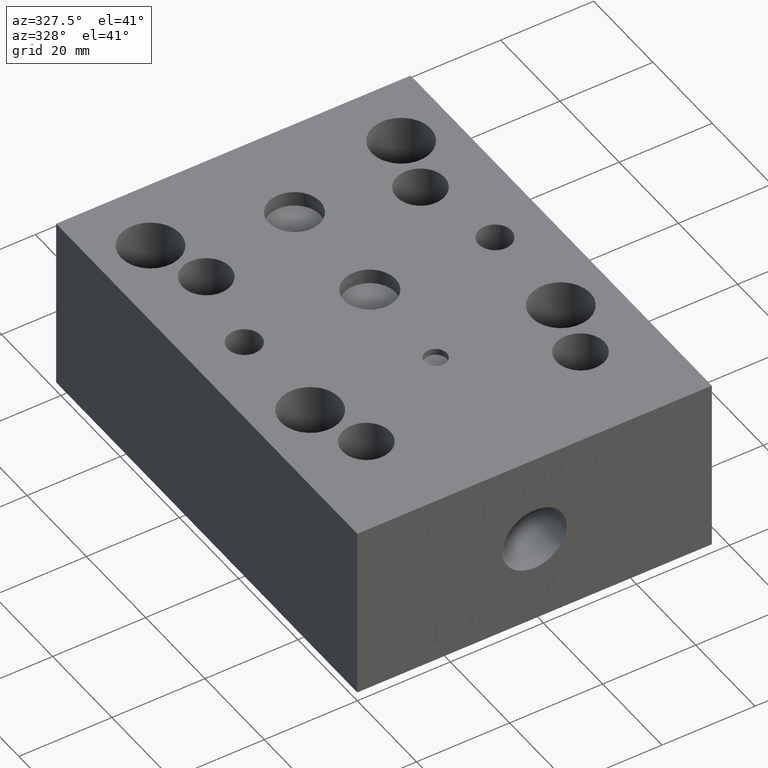
[diagram: clean part render]
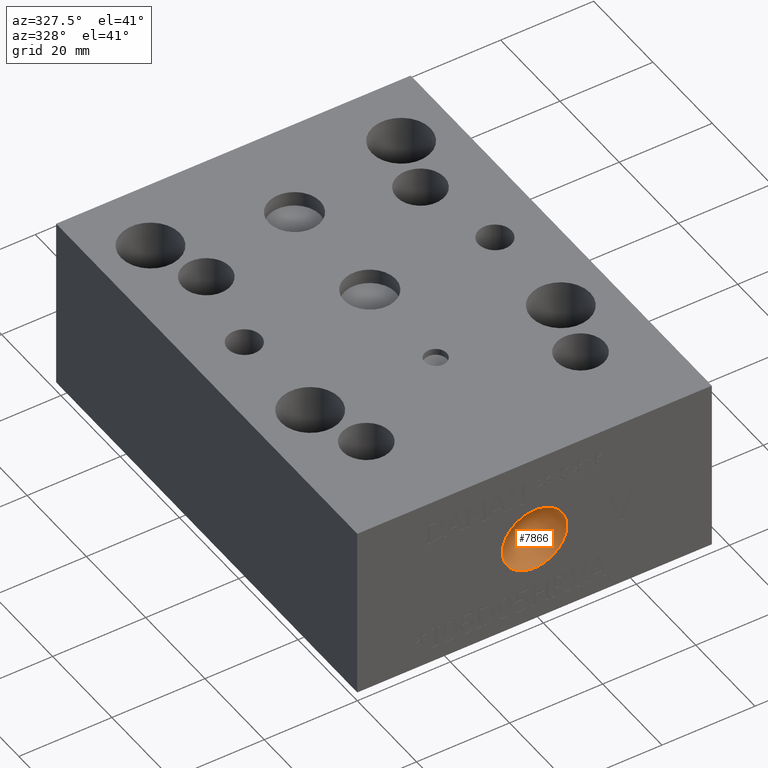
[diagram: same view with one face highlighted and labeled with its STEP entity id]
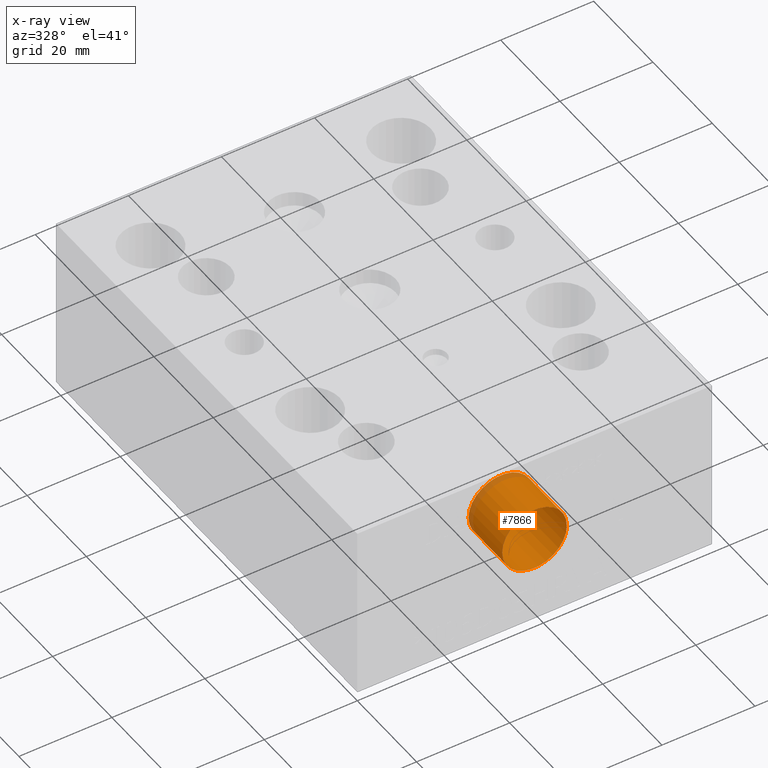
[diagram: x-ray of the same camera — body ghosted, the highlighted face saturated]
A machine part, auxiliary view. The second image highlights one B-rep face of the part: STEP entity #7866.
The next image is the same camera in x-ray: the body ghosted, the highlighted face saturated — about 7% of this face is hidden behind the body in this view.
In plain terms, the highlighted cylindrical surface (bore or boss wall) has radius 6.9342 mm, axis along (0, -1, 0).
Its self-contained STEP definition (entity closure, byte-faithful):
#673=CIRCLE('',#8054,6.9342);
#674=CIRCLE('',#8055,6.9342);
#701=CIRCLE('',#8255,6.9342);
#702=CIRCLE('',#8256,6.9342);
#787=CYLINDRICAL_SURFACE('',#8258,6.9342);
#1165=FACE_OUTER_BOUND('',#1611,.T.);
#1611=EDGE_LOOP('',(#7006,#7007,#7008,#7009,#7010,#7011));
#2439=LINE('',#13085,#3234);
#3234=VECTOR('',#9803,6.9342);
#3617=VERTEX_POINT('',#12020);
#3618=VERTEX_POINT('',#12021);
#3928=VERTEX_POINT('',#13078);
#3929=VERTEX_POINT('',#13079);
#4518=EDGE_CURVE('',#3617,#3618,#673,.T.);
#4519=EDGE_CURVE('',#3618,#3617,#674,.T.);
#4980=EDGE_CURVE('',#3928,#3929,#701,.T.);
#4981=EDGE_CURVE('',#3929,#3928,#702,.T.);
#4983=EDGE_CURVE('',#3618,#3929,#2439,.T.);
#7006=ORIENTED_EDGE('',*,*,#4518,.F.);
#7007=ORIENTED_EDGE('',*,*,#4519,.F.);
#7008=ORIENTED_EDGE('',*,*,#4983,.T.);
#7009=ORIENTED_EDGE('',*,*,#4980,.F.);
#7010=ORIENTED_EDGE('',*,*,#4981,.F.);
#7011=ORIENTED_EDGE('',*,*,#4983,.F.);
#7866=ADVANCED_FACE('',(#1165),#787,.F.);
#8054=AXIS2_PLACEMENT_3D('',#12022,#8975,#8976);
#8055=AXIS2_PLACEMENT_3D('',#12023,#8977,#8978);
#8255=AXIS2_PLACEMENT_3D('',#13080,#9795,#9796);
#8256=AXIS2_PLACEMENT_3D('',#13081,#9797,#9798);
#8258=AXIS2_PLACEMENT_3D('',#13084,#9801,#9802);
#8975=DIRECTION('center_axis',(0.,1.,0.));
#8976=DIRECTION('ref_axis',(1.,0.,0.));
#8977=DIRECTION('center_axis',(0.,1.,0.));
#8978=DIRECTION('ref_axis',(1.,0.,0.));
#9795=DIRECTION('center_axis',(0.,-1.,0.));
#9796=DIRECTION('ref_axis',(1.,0.,0.));
#9797=DIRECTION('center_axis',(0.,-1.,0.));
#9798=DIRECTION('ref_axis',(1.,0.,0.));
#9801=DIRECTION('center_axis',(0.,-1.,0.));
#9802=DIRECTION('ref_axis',(1.,0.,0.));
#9803=DIRECTION('',(0.,1.,0.));
#12020=CARTESIAN_POINT('',(45.0342,0.,19.05));
#12021=CARTESIAN_POINT('',(31.1658,0.,19.05));
#12022=CARTESIAN_POINT('Origin',(38.1,0.,19.05));
#12023=CARTESIAN_POINT('Origin',(38.1,0.,19.05));
#13078=CARTESIAN_POINT('',(45.0342,11.4046,19.05));
#13079=CARTESIAN_POINT('',(31.1658,11.4046,19.05));
#13080=CARTESIAN_POINT('Origin',(38.1,11.4046,19.05));
#13081=CARTESIAN_POINT('Origin',(38.1,11.4046,19.05));
#13084=CARTESIAN_POINT('Origin',(38.1,5.7023,19.05));
#13085=CARTESIAN_POINT('',(31.1658,5.7023,19.05));